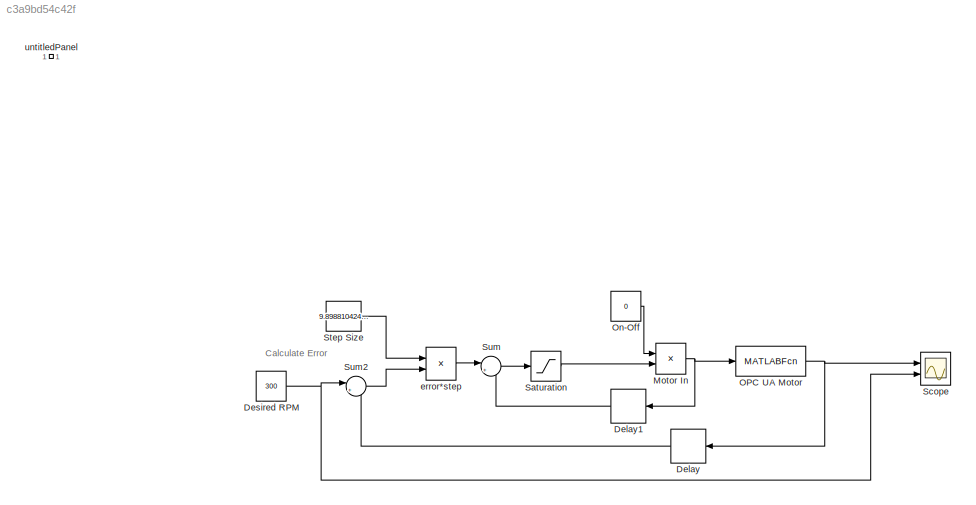
MODEL slx_c3a9bd54c42f
KIND model
CONFIG AbsTol = auto
CONFIG EnableMultiTasking = off
CONFIG FixedStep = auto
CONFIG MaxStep = auto
CONFIG MinStep = auto
CONFIG RelTol = 1e-3
CONFIG SampleTimeConstraint = Unconstrained
CONFIG SolverName = VariableStepAuto
CONFIG StartTime = 0.0
CONFIG StopTime = inf
BLOCK [Delay] Delay
  DelayLength = 1
  InputPortMap = u0
  Ports = [1, 1]
BLOCK [Delay] Delay1
  DelayLength = 1
  InputPortMap = u0
  Ports = [1, 1]
BLOCK [Constant] Desired RPM
  Value = 300
BLOCK [Product] Motor In
  Ports = [2, 1]
BLOCK [MATLABFcn] OPC UA Motor
  MATLABFcn = read_write_opcua
  Output1D = off
  OutputDimensions = 1
  Ports = [1, 1]
BLOCK [Constant] On-Off
  Value = 0
BLOCK [Saturate] Saturation
  LowerLimit = 0
  UpperLimit = 1
BLOCK [Scope] Scope
  Floating = off
  NumInputPorts = 2
  Ports = [2]
  ScopeSpecificationString = Simulink.scopes.TimeScopeBlockCfg('CurrentConfiguration', extmgr.ConfigurationSet(extmgr.Configuration('Core','General UI',true),extmgr.Configuration('Core','Source UI',true),extmgr.Configuration('Sources','WiredSimulink',true),extmgr.Configuration('Visuals','Time Domain',true,'SerializedDisplays',{struct('MinYLimReal','237.09045','MaxYLimReal','366.88862','YLabelReal','','MinYLimMag','237.09045',...<+1509ch>
BLOCK [Constant] Step Size
  Value = 9.898810424804688e-05
BLOCK [Sum] Sum
  Inputs = |++
  Ports = [2, 1]
BLOCK [Sum] Sum2
  Inputs = |+-
  NameLocation = top
  Ports = [2, 1]
BLOCK [Product] error*step
  Ports = [2, 1]
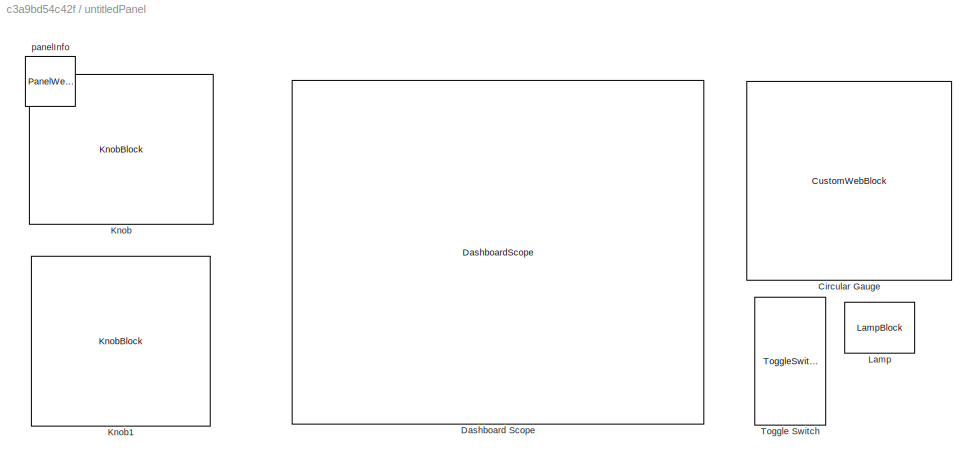
BLOCK [SubSystem] untitledPanel
  IsWebBlockPanel = on
  Ports = []
  RequestExecContextInheritance = off
  Tag = HiddenForWebPanel
BLOCK [CustomWebBlock] untitledPanel/Circular Gauge
  Configuration = {"components":[{"name":"CircularScaleComponent","settings":{"bounds":{"max":500,"min":0,"tickInterval":"auto"},"direction":"cw","flipLimits":0,"innerRadius":0.75,"internalTickHeightScaleFactor":1,"labelColor":[255,252,199],"labelFont":{"font":"Arial","fontSize":12},"labelTransparency":1,"minorTickHeightScaleFactor":0.2,"needleImage":{"size":[1890,567],"src":"data:image\/svg+xml;base64,PD94bWwgdmVy...<+15923ch>
  LabelPosition = Hide
  PanelInfo = {"panelId":"panelId-d324ff84-3bbd-4d98-971a-cec95afe0b01","type":"panelChild","version":"2019b","zIndex":1500002}
  ShowInitialText = on
  Tag = HiddenForWebPanel
BLOCK [DashboardScope] untitledPanel/Dashboard Scope
  PanelInfo = {"panelId":"panelId-d324ff84-3bbd-4d98-971a-cec95afe0b01","type":"panelChild","version":"2019b","zIndex":1500008}
  ScaleAtStop = off
  Tag = HiddenForWebPanel
  Ymax = 500
  Ymin = 0
BLOCK [KnobBlock] untitledPanel/Knob
  PanelInfo = {"panelId":"panelId-d324ff84-3bbd-4d98-971a-cec95afe0b01","type":"panelChild","version":"2019b","zIndex":1500014}
  ScaleMax = 500
  ScaleMin = 100
  Tag = HiddenForWebPanel
BLOCK [KnobBlock] untitledPanel/Knob1
  PanelInfo = {"panelId":"panelId-d324ff84-3bbd-4d98-971a-cec95afe0b01","type":"panelChild","version":"2019b","zIndex":1500016}
  ScaleMax = 0.0001
  ScaleMin = 0.00001
  Tag = HiddenForWebPanel
  TickInterval = 1e-5
BLOCK [LampBlock] untitledPanel/Lamp
  PanelInfo = {"panelId":"panelId-d324ff84-3bbd-4d98-971a-cec95afe0b01","type":"panelChild","version":"2019b","zIndex":1500006}
  Tag = HiddenForWebPanel
BLOCK [ToggleSwitchBlock] untitledPanel/Toggle Switch
  PanelInfo = {"panelId":"panelId-d324ff84-3bbd-4d98-971a-cec95afe0b01","type":"panelChild","version":"2019b","zIndex":1500010}
  Tag = HiddenForWebPanel
BLOCK [PanelWebBlock] untitledPanel/panelInfo
  PanelInfo = {"compacted":false,"height":408,"labels":{"label0520819195":{"left":"283","settings":{"backgroundColor":"rgba(0, 0, 0, 0)","bold":true,"font":"Arial","fontColor":"black","fontSize":1,"italicized":false,"underlined":false},"text":"Rounds per Minute","top":"17"},"label8740602617":{"left":"18","settings":{"backgroundColor":"rgba(0, 0, 0, 0)","bold":true,"font":"Arial","fontColor":"black","fontSize":1...<+462ch>
  Tag = HiddenForWebPanel
ANNOTATION (root): Calculate Error
LINE Delay1:1 -> Sum:2
LINE Delay:1 -> Sum2:2
NET Desired RPM:1 -> Scope:2, Sum2:1
NET Motor In:1 -> Delay1:1, OPC UA Motor:1
NET OPC UA Motor:1 -> Delay:1, Scope:1
LINE On-Off:1 -> Motor In:1
LINE Saturation:1 -> Motor In:2
LINE Step Size:1 -> error*step:1
LINE Sum2:1 -> error*step:2
LINE Sum:1 -> Saturation:1
LINE error*step:1 -> Sum:1
note: NET lines group one-source signal fan-out (src -> all destinations, sorted); 1:1 wires keep LINE
